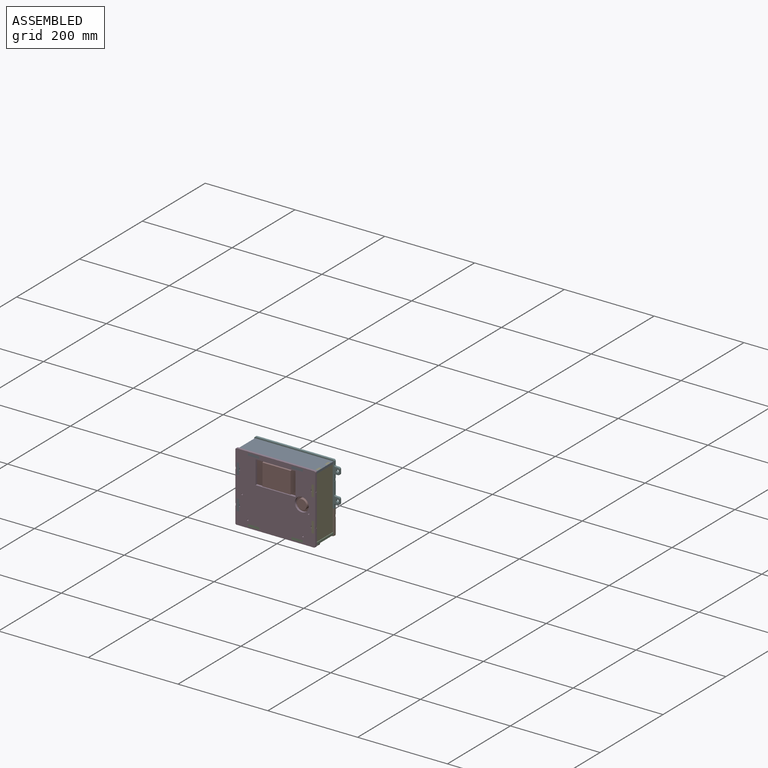
[diagram: assembled view]
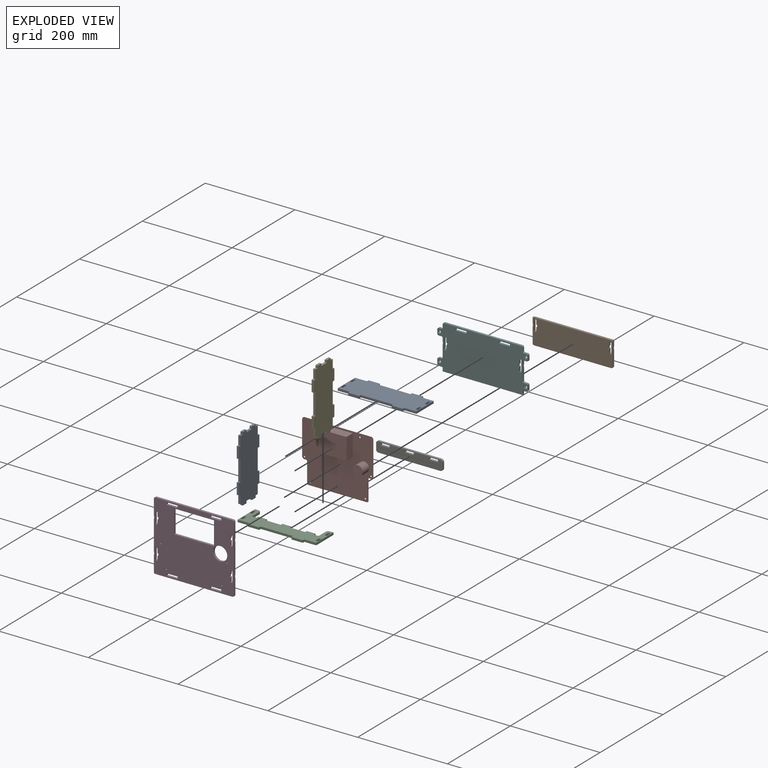
[diagram: exploded view]
GUIDED TOUR — MATED ASSEMBLY (Onshape document 0e16f6dee027c3512d9010fd, AutoMate assembly 0e16f6dee027c3512d9010fd_3248bda8da38cb0067d4859e_489a7c340848d6dffe4b2f9a_default)

This assembly has 9 components, labeled P0..P8 below (a component is one placed occurrence of a part; the same part can appear more than once), held together by 8 mates. A mate is a constraint between two components; its type names the relative motion it leaves free:
  FASTENED — locks the two components together rigidly (no relative motion).
Axis/direction vectors are unit vectors and 'through' points are millimeter coordinates, both in the assembly's world frame.

MATES
  1. FASTENED "Fastened 7": P0 <-> P1, direction (0.000, 1.000, 0.000) through (-81.00, 60.00, -43.50) mm
  2. FASTENED "Fastened 6": P8 <-> P5, direction (0.000, 1.000, 0.000) through (-61.00, 60.00, 54.50) mm
  3. FASTENED "Fastened 2": P3 <-> P8, direction (0.000, -1.000, 0.000) through (61.00, -5.00, 49.50) mm
  4. FASTENED "Fastened 5": P0 <-> P3, direction (0.000, -1.000, 0.000) through (-81.00, -5.00, -68.50) mm
  5. FASTENED "Fastened 4": P4 <-> P3, direction (0.000, -1.000, 0.000) through (81.00, -5.00, 29.50) mm
  6. FASTENED "Fastened 8": P2 <-> P6, direction (0.000, 1.000, 0.000) through (64.00, 32.00, -93.50) mm
  7. FASTENED "Fastened 1": P7 <-> P3, direction (0.000, -1.000, 0.000) through (58.90, -5.00, -17.10) mm
  8. FASTENED "Fastened 3": P2 <-> P3, direction (0.000, -1.000, 0.000) through (-36.00, -5.00, -93.50) mm

ASSEMBLY ORDER
  1. P2 — the base component [order verified]
  2. P7 [order verified]
  3. P4 [order verified]
  4. P8 [order verified]
  5. P0 [order verified]
  6. P6 [order verified]
  7. P3 [order verified]
  8. P5 [order verified]
  9. P1 [order verified]
(P3, P6 verified with a relaxed clearance tolerance: the source model stores slight part interference there.)
Order-tag legend:
  [order verified] — this step's position reverses a verified removal order: the component was checked to insert without passing through the ones already placed.

Of the 9 components, 1 carries the full construction recipe — the FeatureScript program that regenerates the part's solid from scratch; the rest are supplied as boundary geometry only.
Each toured component is shown spotlighted twice — in the assembled view, then in the exploded view, where a leader line traces a displaced component back to its assembled socket (saturated green if recipe-attached, orange if geometry-only; every other component desaturated gray) — followed by its recipe or geometry summary and the mates that hold it.
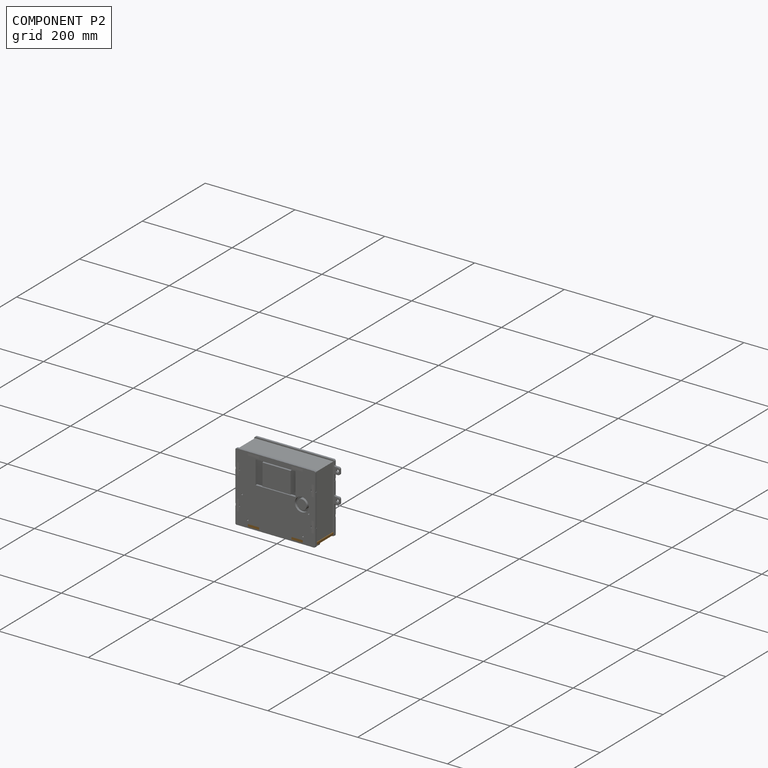
[diagram: component P2 — assembled]
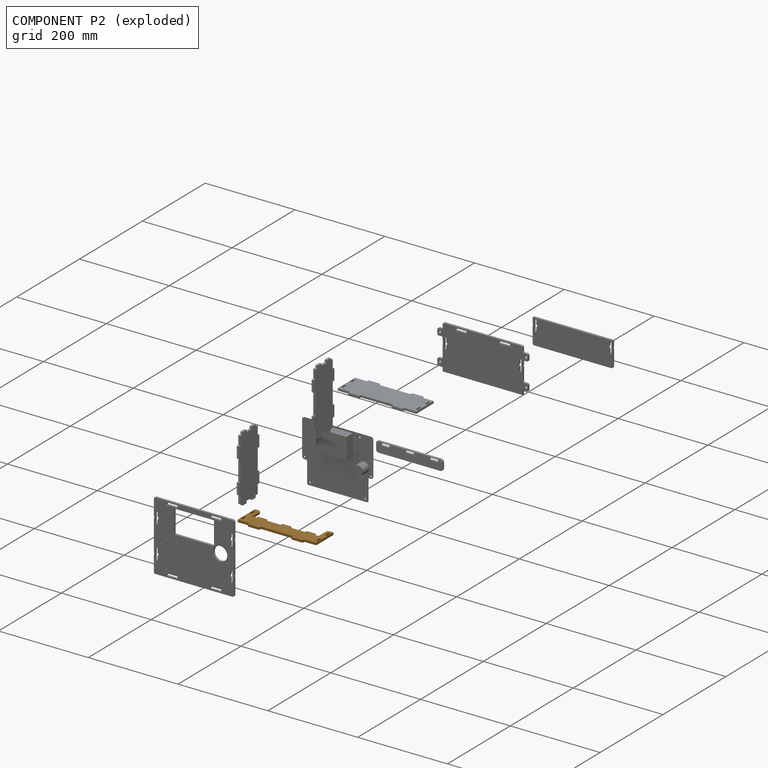
[diagram: component P2 — exploded]
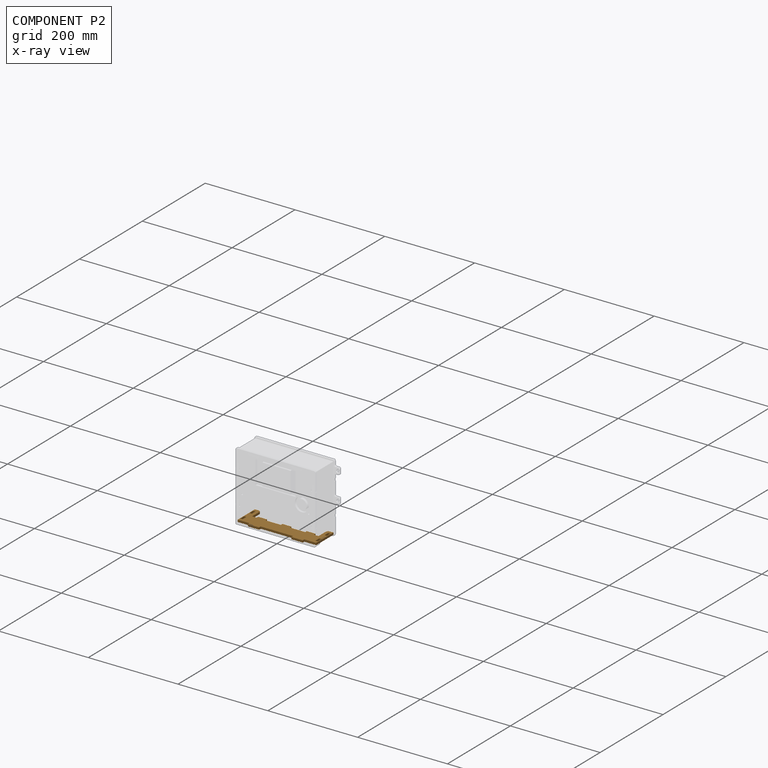
[diagram: component P2 — x-ray view]
COMPONENT P2 — geometry summary (no construction recipe available for this part):
  bounding box: 175.0 x 60.0 x 5.0 mm
  B-rep topology: 1 solid, 48 faces, 276 edges
  volume: 28901 mm^3 (55% of its bounding box)
  symmetry: 2-fold rotationally symmetric about the y axis; mirror-symmetric across its x mid-plane, z mid-plane
Held by: FASTENED mate "Fastened 8" to P6; FASTENED mate "Fastened 3" to P3.
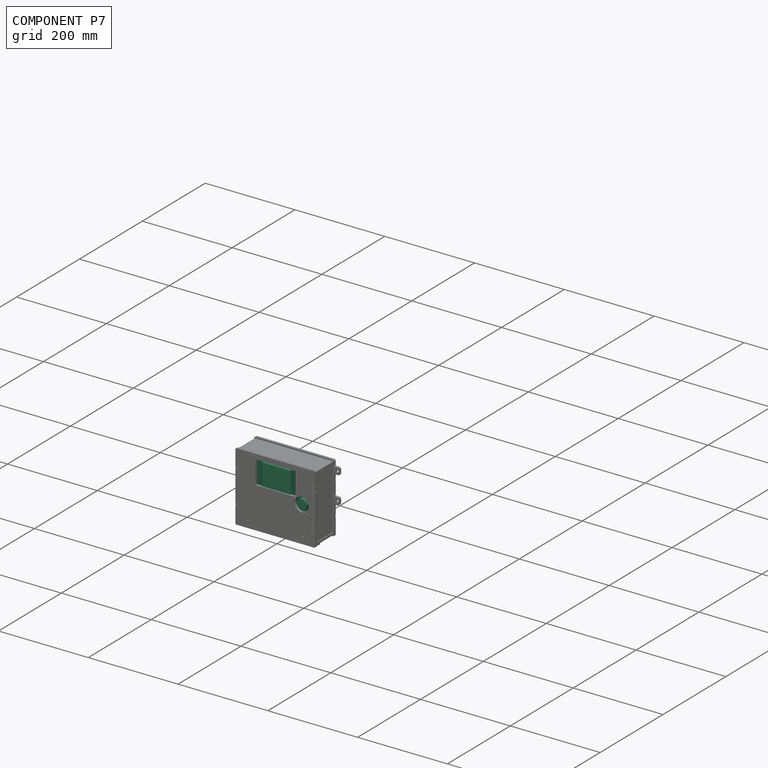
[diagram: component P7 — assembled]
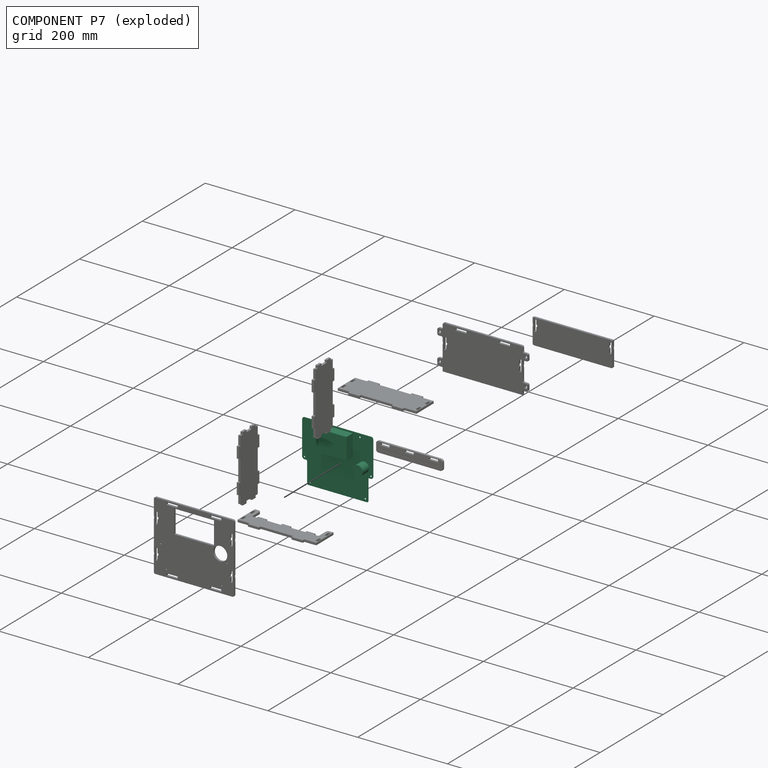
[diagram: component P7 — exploded]
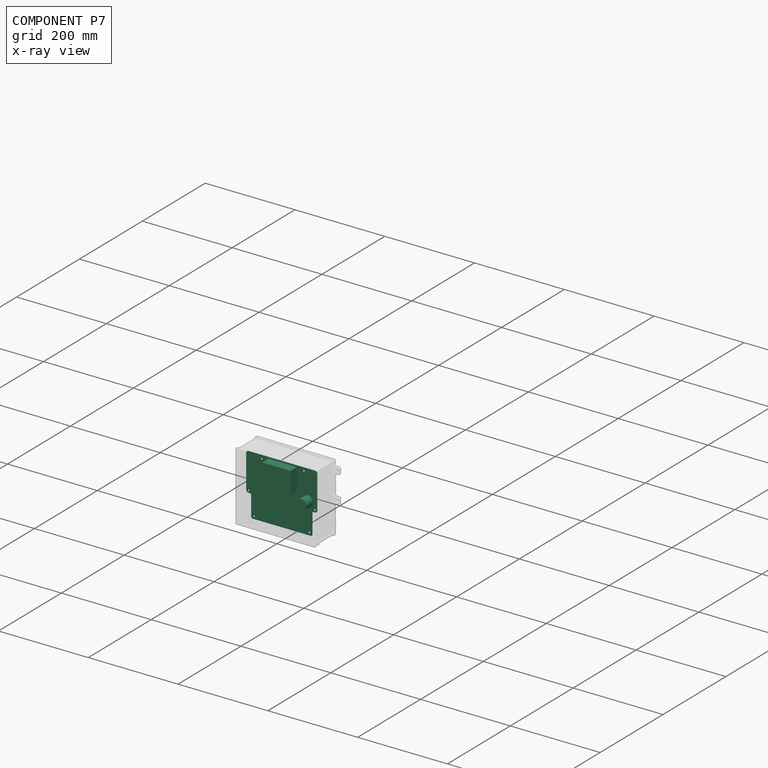
[diagram: component P7 — x-ray view]
COMPONENT P7 — recipe-attached (CADFS 00442533, mesh-verified: the recipe's output STEP matches this component's geometry to below the mesh-comparison resolution (tessellation chordal tolerance ~0.312 mm)).
Held by: FASTENED mate "Fastened 1" to P3.
Construction recipe (FeatureScript — the CAD program that rebuilds this solid; sketch coordinates are in the units given by the * unit suffixes, e.g. mm):

FeatureScript 1511;
import(path : "onshape/std/geometry.fs", version : "1511.0");
import(path : "onshape/std/common.fs", version : "1511.0");
const mm = millimeter;
const VERTEX = EntityType.VERTEX;
const EDGE = EntityType.EDGE;
const FACE = EntityType.FACE;
const BODY = EntityType.BODY;
function v(x, y){return vector(x, y);}
function OD(order){return orderDisambiguation(order);}
function OSD(set){return originalSetDisambiguation(set);}
function TD(topology){return topologyDisambiguation(topology);}
function TDD(query){return trueDependencyDisambiguation(query);}
function sQuery(a, b, c) {return sketchEntityQuery(a, b, c);}

annotation { "Feature Type Name" : "Feature", "Feature Type Description" : "" }
export const myFeature = defineFeature(function(context is Context, id is Id, definition is map)
    precondition{}
    {
        {
            var Q0;
            Q0=qCreatedBy(makeId("Front.planeOp"),FACE);
            var sketch = newSketch(context, id + "F0", { "sketchPlane" : qUnion([Q0])});
            skLineSegment(sketch, "E0", {"start": v(-79, -32) * mm, "end": v(-79, 42.5) * mm});
            skLineSegment(sketch, "E1", {"start": v(-74, 47.5) * mm, "end": v(74, 47.5) * mm});
            skLineSegment(sketch, "E2", {"start": v(79, 42.5) * mm, "end": v(79, -32) * mm});
            skLineSegment(sketch, "E3", {"start": v(74, -37) * mm, "end": v(70, -37) * mm});
            skLineSegment(sketch, "E4", {"start": v(68, -39) * mm, "end": v(68, -83.5) * mm});
            skLineSegment(sketch, "E5", {"start": v(65, -86.5) * mm, "end": v(-65, -86.5) * mm});
            skLineSegment(sketch, "E6", {"start": v(-68, -83.5) * mm, "end": v(-68, -39) * mm});
            skLineSegment(sketch, "E7", {"start": v(-70, -37) * mm, "end": v(-74, -37) * mm});
            skLineSegment(sketch, "E8", {"start": v(0, -86.5) * mm, "end": v(0, 47.5) * mm, "construction": true});
            skPoint(sketch, "E9.visualSharp", {"position": v(-79, 47.5) * mm});
            skArc(sketch, "E9.filletArc", {"start": v(-74, 47.5) * mm, "mid": v(-77.54, 46.04) * mm, "end": v(-79, 42.5) * mm});
            skPoint(sketch, "E10.visualSharp", {"position": v(79, 47.5) * mm});
            skArc(sketch, "E10.filletArc", {"start": v(79, 42.5) * mm, "mid": v(77.54, 46.04) * mm, "end": v(74, 47.5) * mm});
            skPoint(sketch, "E11.visualSharp", {"position": v(79, -37) * mm});
            skArc(sketch, "E11.filletArc", {"start": v(74, -37) * mm, "mid": v(77.54, -35.54) * mm, "end": v(79, -32) * mm});
            skPoint(sketch, "E12.visualSharp", {"position": v(-79, -37) * mm});
            skArc(sketch, "E12.filletArc", {"start": v(-79, -32) * mm, "mid": v(-77.54, -35.54) * mm, "end": v(-74, -37) * mm});
            skPoint(sketch, "E13.visualSharp", {"position": v(-68, -37) * mm});
            skArc(sketch, "E13.filletArc", {"start": v(-68, -39) * mm, "mid": v(-68.59, -37.59) * mm, "end": v(-70, -37) * mm});
            skPoint(sketch, "E14.visualSharp", {"position": v(68, -37) * mm});
            skArc(sketch, "E14.filletArc", {"start": v(70, -37) * mm, "mid": v(68.59, -37.59) * mm, "end": v(68, -39) * mm});
            skPoint(sketch, "E15.visualSharp", {"position": v(68, -86.5) * mm});
            skArc(sketch, "E15.filletArc", {"start": v(65, -86.5) * mm, "mid": v(67.12, -85.62) * mm, "end": v(68, -83.5) * mm});
            skPoint(sketch, "E16.visualSharp", {"position": v(-68, -86.5) * mm});
            skArc(sketch, "E16.filletArc", {"start": v(-68, -83.5) * mm, "mid": v(-67.12, -85.62) * mm, "end": v(-65, -86.5) * mm});
            skLineSegment(sketch, "E17.bottom", {"start": v(33.85, -3.9) * mm, "end": v(-29.15, -3.9) * mm});
            skLineSegment(sketch, "E17.top", {"start": v(33.85, 44.1) * mm, "end": v(-29.15, 44.1) * mm});
            skLineSegment(sketch, "E17.left", {"start": v(33.85, -3.9) * mm, "end": v(33.85, 44.1) * mm});
            skLineSegment(sketch, "E17.right", {"start": v(-29.15, -3.9) * mm, "end": v(-29.15, 44.1) * mm});
            skPoint(sketch, "E17.middle", {"position": v(2.35, 20.1) * mm});
            skCircle(sketch, "E18", {"center": v(58.9, -17.1) * mm, "radius": 11 * mm});
            skLineSegment(sketch, "E19", {"start": v(-68, -55) * mm, "end": v(68, -55) * mm, "construction": true});
            skLineSegment(sketch, "E20", {"start": v(68, -56) * mm, "end": v(-68, -56) * mm, "construction": true});
            skCircle(sketch, "E21", {"center": v(-74, -32) * mm, "radius": 1.6 * mm});
            skCircle(sketch, "E22", {"center": v(-61.5, -80.5) * mm, "radius": 1.6 * mm});
            skCircle(sketch, "E23", {"center": v(-44.45, 39.2) * mm, "radius": 1.6 * mm});
            skCircle(sketch, "E24", {"center": v(49.35, 40) * mm, "radius": 1.6 * mm});
            skLineSegment(sketch, "E25", {"start": v(-79, 0) * mm, "end": v(79, 0) * mm, "construction": true});
            skCircle(sketch, "E26.MirrorC", {"center": v(61.5, -80.5) * mm, "radius": 1.6 * mm});
            skCircle(sketch, "E27.MirrorC", {"center": v(74, -32) * mm, "radius": 1.6 * mm});
            skSolve(sketch);
        }
        {
            var Q0;
            Q0=makeQuery(id+"F0.imprint","IMPRINT",FACE,{"disambiguationData":[TD([[makeQuery(id+"F0.imprint","IMPRINT",EDGE,{"derivedFrom":sQuery(id+"F0.wireOp",EDGE,"E0")}),-1.0]])]});
            var Q1;
            Q1=makeQuery(id+"F0.imprint","IMPRINT",FACE,{"disambiguationData":[TD([[makeQuery(id+"F0.imprint","IMPRINT",EDGE,{"derivedFrom":sQuery(id+"F0.wireOp",EDGE,"E17.bottom")}),-1.0]])]});
            var Q2;
            Q2=makeQuery(id+"F0.imprint","IMPRINT",FACE,{"disambiguationData":[TD([[makeQuery(id+"F0.imprint","IMPRINT",EDGE,{"derivedFrom":sQuery(id+"F0.wireOp",EDGE,"E18")}),1.0]])]});
            extrude(context, id + "F1", {"entities" : qUnion([Q0, Q1, Q2]), "oppositeDirection" : true, "depth" : 1 * mm});
        }
        {
            var Q0;
            Q0=makeQuery(id+"F0.imprint","IMPRINT",FACE,{"disambiguationData":[TD([[makeQuery(id+"F0.imprint","IMPRINT",EDGE,{"derivedFrom":sQuery(id+"F0.wireOp",EDGE,"E17.bottom")}),-1.0]])]});
            var Q1;
            Q1=makeQuery(id+"F0.imprint","IMPRINT",FACE,{"disambiguationData":[TD([[makeQuery(id+"F0.imprint","IMPRINT",EDGE,{"derivedFrom":sQuery(id+"F0.wireOp",EDGE,"E18")}),1.0]])]});
            extrude(context, id + "F2", {"entities" : qUnion([Q0, Q1]), "operationType" : NewBodyOperationType.ADD, "depth" : 20 * mm});
        }
    });
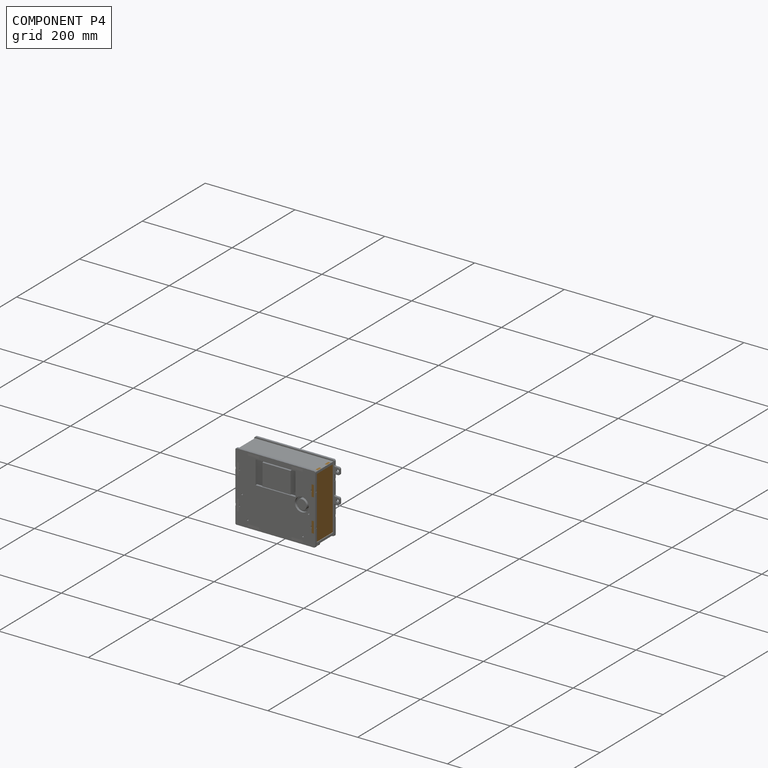
[diagram: component P4 — assembled]
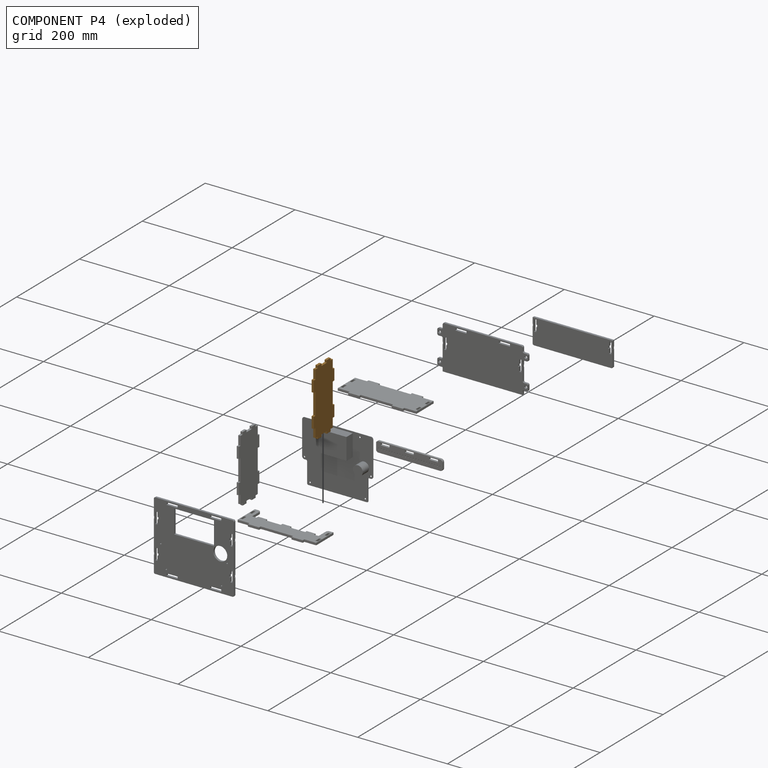
[diagram: component P4 — exploded]
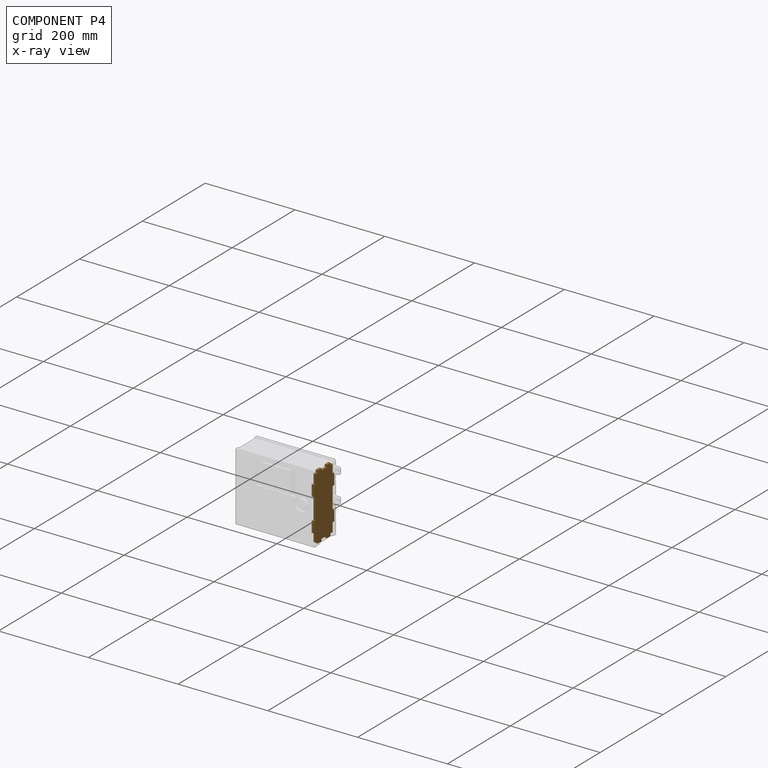
[diagram: component P4 — x-ray view]
COMPONENT P4 — geometry summary (no construction recipe available for this part):
  bounding box: 148.0 x 65.0 x 5.0 mm
  B-rep topology: 1 solid, 38 faces, 216 edges
  volume: 41650 mm^3 (87% of its bounding box)
  symmetry: 2-fold rotationally symmetric about the x axis; 2-fold rotationally symmetric about the y axis; 2-fold rotationally symmetric about the z axis; mirror-symmetric across its x mid-plane, y mid-plane, z mid-plane
Held by: FASTENED mate "Fastened 4" to P3.
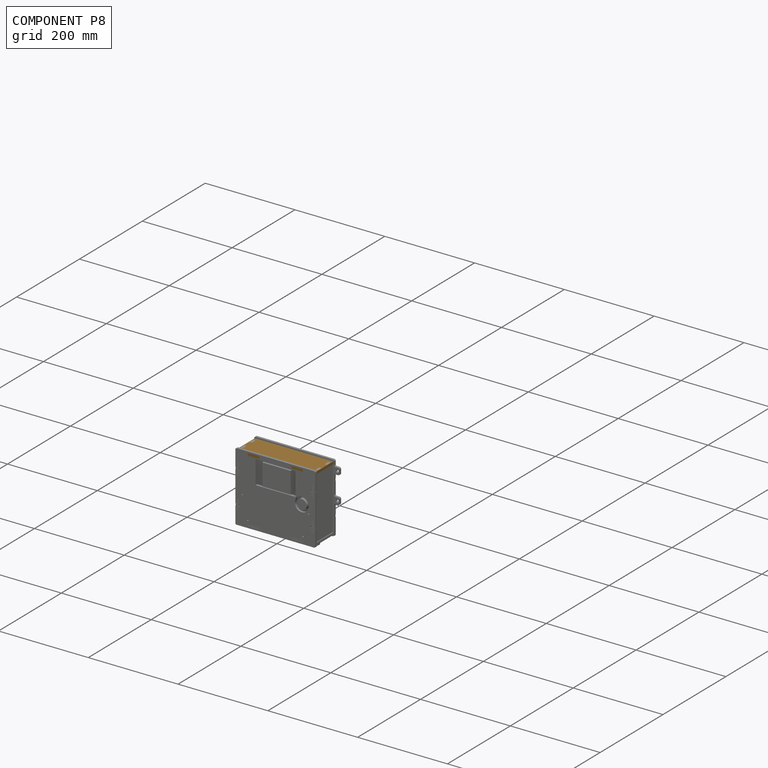
[diagram: component P8 — assembled]
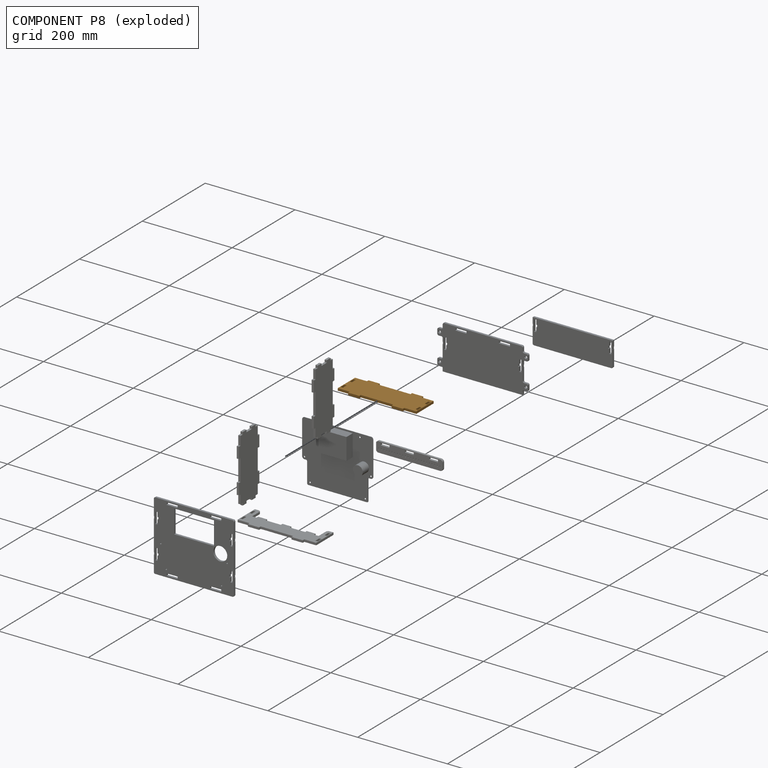
[diagram: component P8 — exploded]
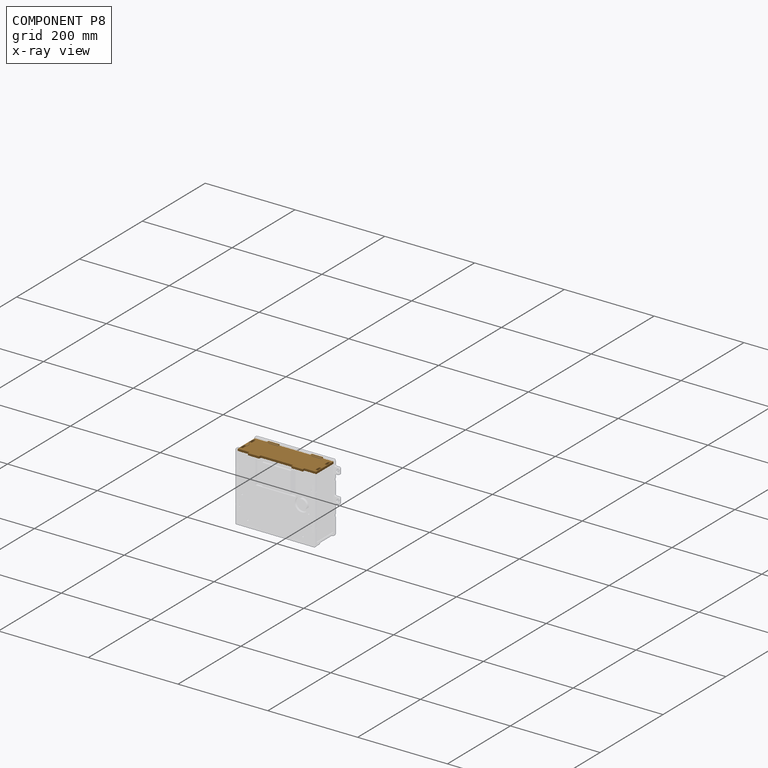
[diagram: component P8 — x-ray view]
COMPONENT P8 — geometry summary (no construction recipe available for this part):
  bounding box: 175.0 x 65.0 x 5.0 mm
  B-rep topology: 1 solid, 38 faces, 216 edges
  volume: 49425 mm^3 (87% of its bounding box)
  symmetry: 2-fold rotationally symmetric about the x axis; 2-fold rotationally symmetric about the y axis; 2-fold rotationally symmetric about the z axis; mirror-symmetric across its x mid-plane, y mid-plane, z mid-plane
Held by: FASTENED mate "Fastened 6" to P5; FASTENED mate "Fastened 2" to P3.
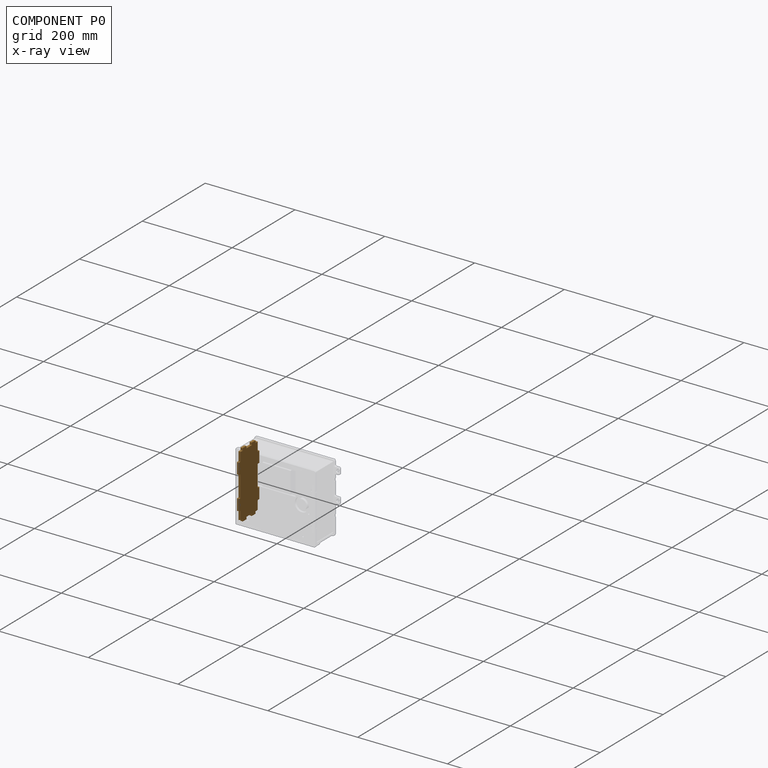
[diagram: component P0 — x-ray view]
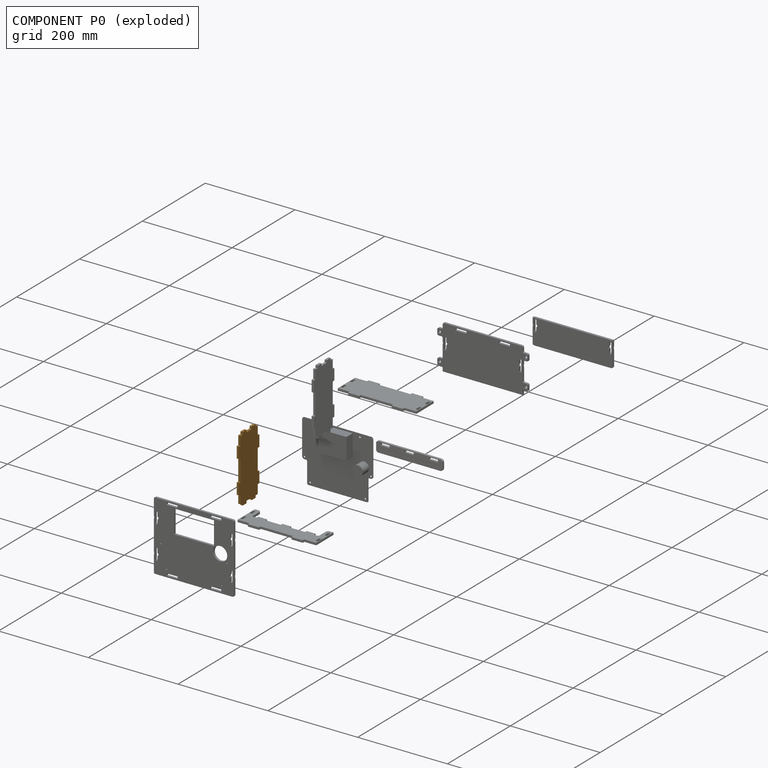
[diagram: component P0 — exploded]
COMPONENT P0 — geometry summary (no construction recipe available for this part):
  bounding box: 148.0 x 65.0 x 5.0 mm
  B-rep topology: 1 solid, 38 faces, 216 edges
  volume: 41650 mm^3 (87% of its bounding box)
  symmetry: 2-fold rotationally symmetric about the x axis; 2-fold rotationally symmetric about the y axis; 2-fold rotationally symmetric about the z axis; mirror-symmetric across its x mid-plane, y mid-plane, z mid-plane
Held by: FASTENED mate "Fastened 7" to P1; FASTENED mate "Fastened 5" to P3.
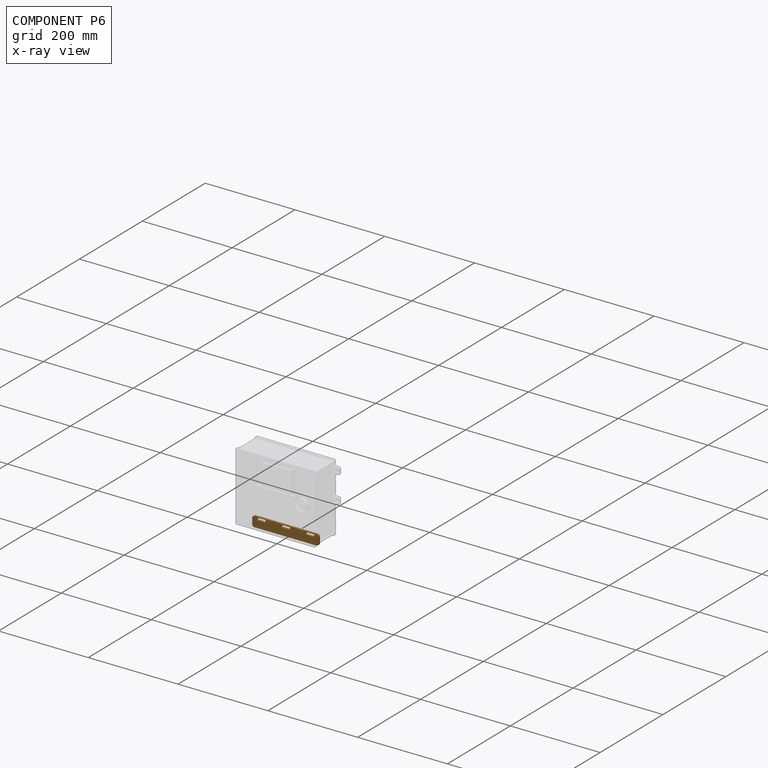
[diagram: component P6 — x-ray view]
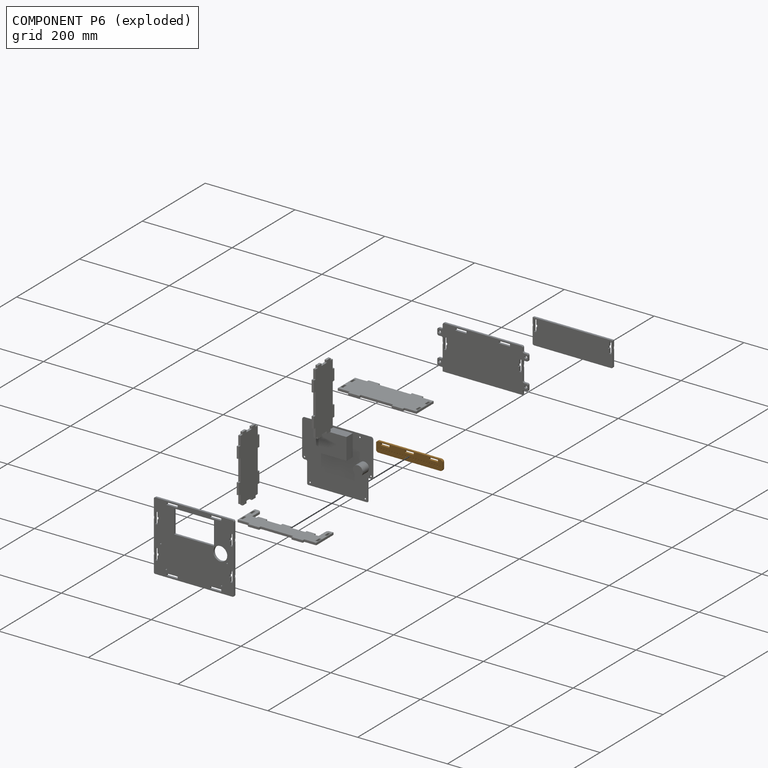
[diagram: component P6 — exploded]
COMPONENT P6 — geometry summary (no construction recipe available for this part):
  bounding box: 148.0 x 23.0 x 5.0 mm
  B-rep topology: 1 solid, 118 faces, 696 edges
  volume: 14789 mm^3 (87% of its bounding box)
  symmetry: 2-fold rotationally symmetric about the y axis; mirror-symmetric across its x mid-plane, z mid-plane
Held by: FASTENED mate "Fastened 8" to P2.
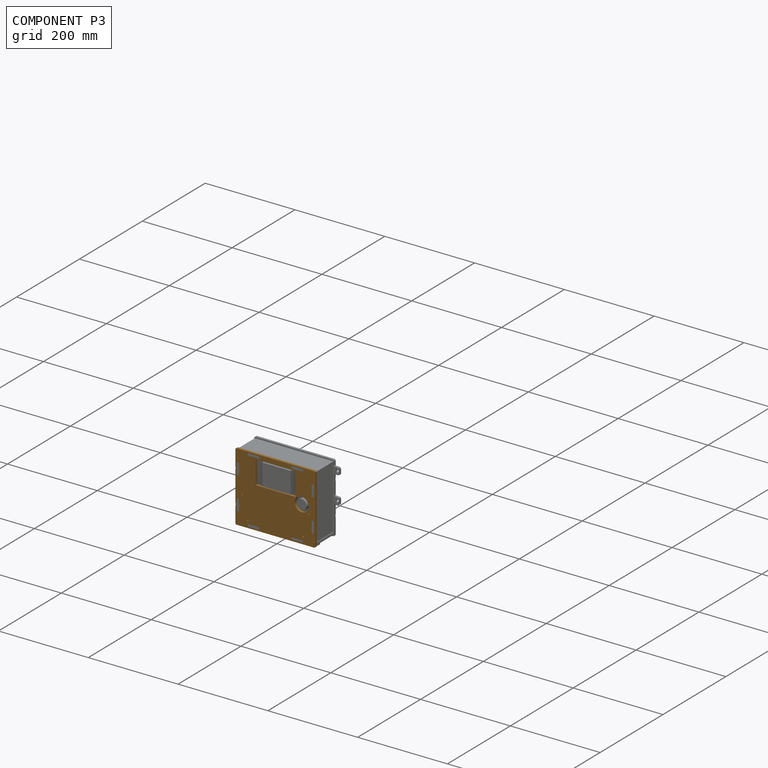
[diagram: component P3 — assembled]
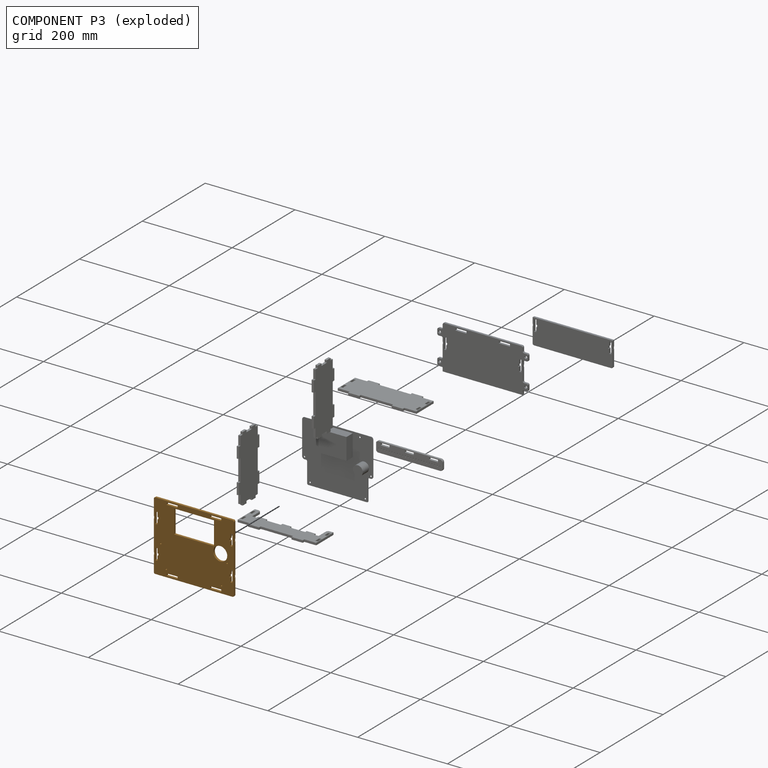
[diagram: component P3 — exploded]
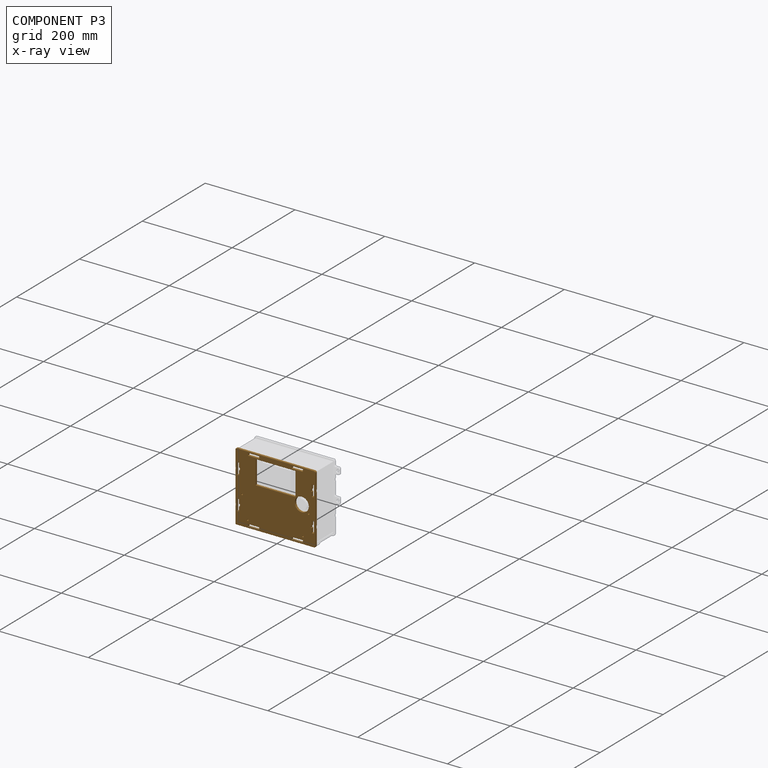
[diagram: component P3 — x-ray view]
COMPONENT P3 — geometry summary (no construction recipe available for this part):
  bounding box: 178.0 x 154.0 x 5.0 mm
  B-rep topology: 1 solid, 83 faces, 486 edges
  volume: 104697 mm^3 (76% of its bounding box)
  symmetry: mirror-symmetric across its y mid-plane
Held by: FASTENED mate "Fastened 2" to P8; FASTENED mate "Fastened 5" to P0; FASTENED mate "Fastened 4" to P4; FASTENED mate "Fastened 1" to P7; FASTENED mate "Fastened 3" to P2.
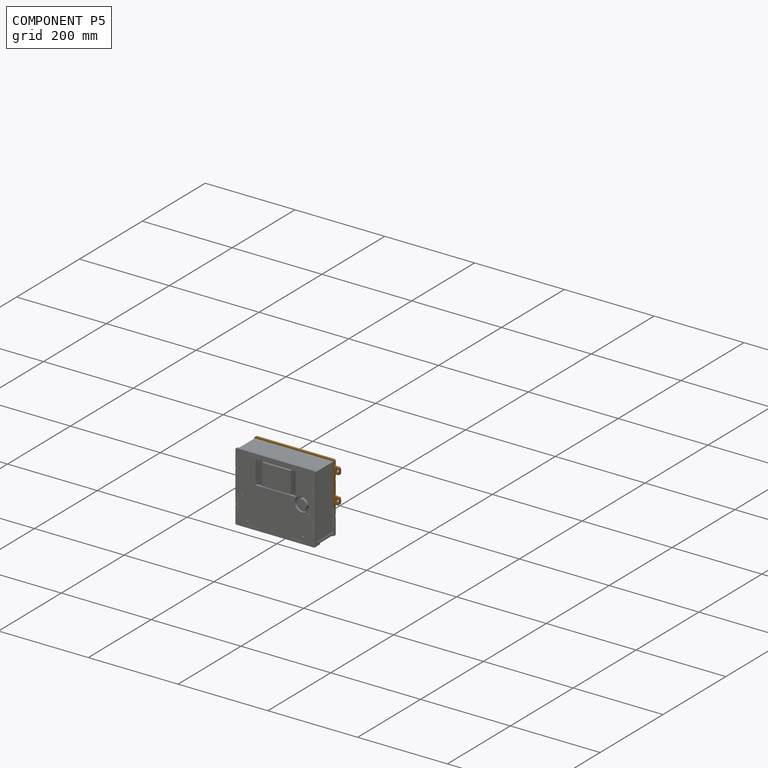
[diagram: component P5 — assembled]
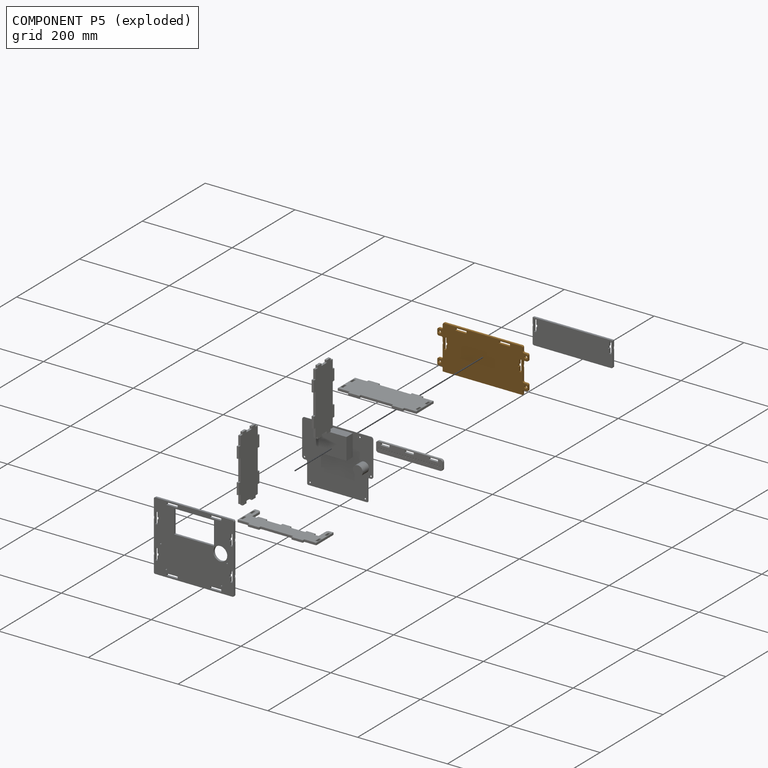
[diagram: component P5 — exploded]
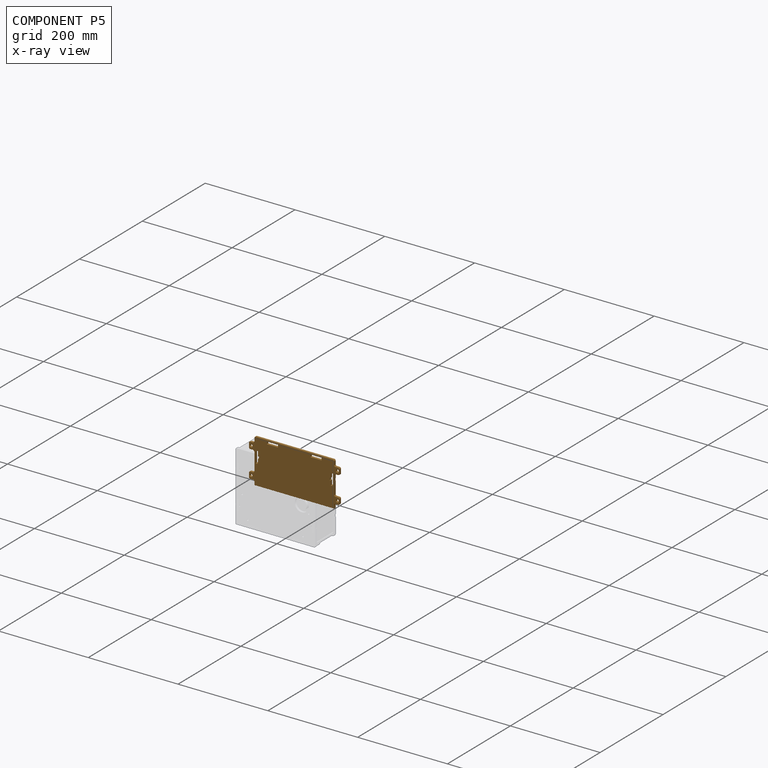
[diagram: component P5 — x-ray view]
COMPONENT P5 — geometry summary (no construction recipe available for this part):
  bounding box: 202.0 x 98.0 x 5.0 mm
  B-rep topology: 1 solid, 76 faces, 444 edges
  volume: 87572 mm^3 (88% of its bounding box)
  symmetry: 2-fold rotationally symmetric about the z axis; mirror-symmetric across its x mid-plane, y mid-plane
Held by: FASTENED mate "Fastened 6" to P8.
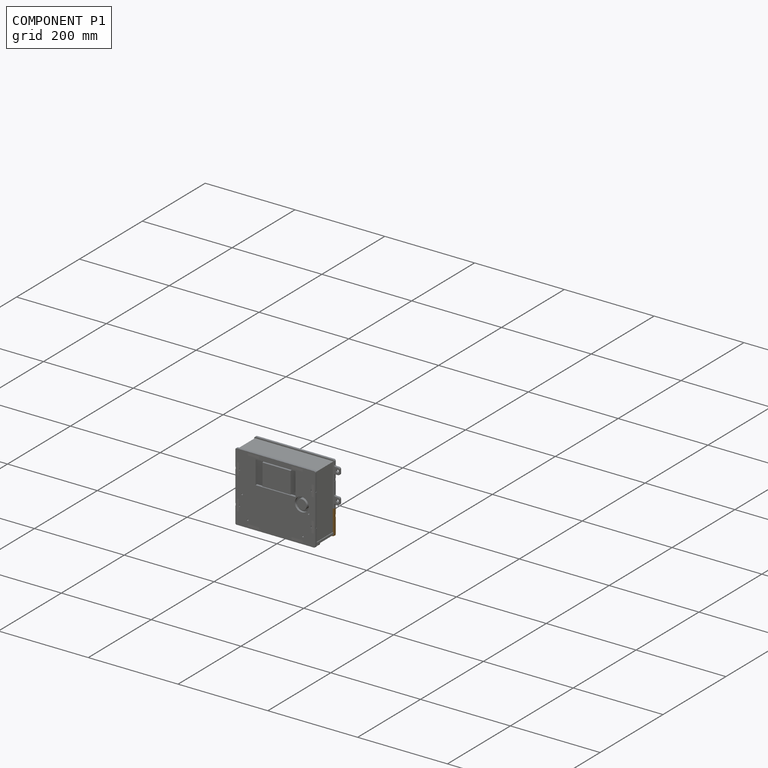
[diagram: component P1 — assembled]
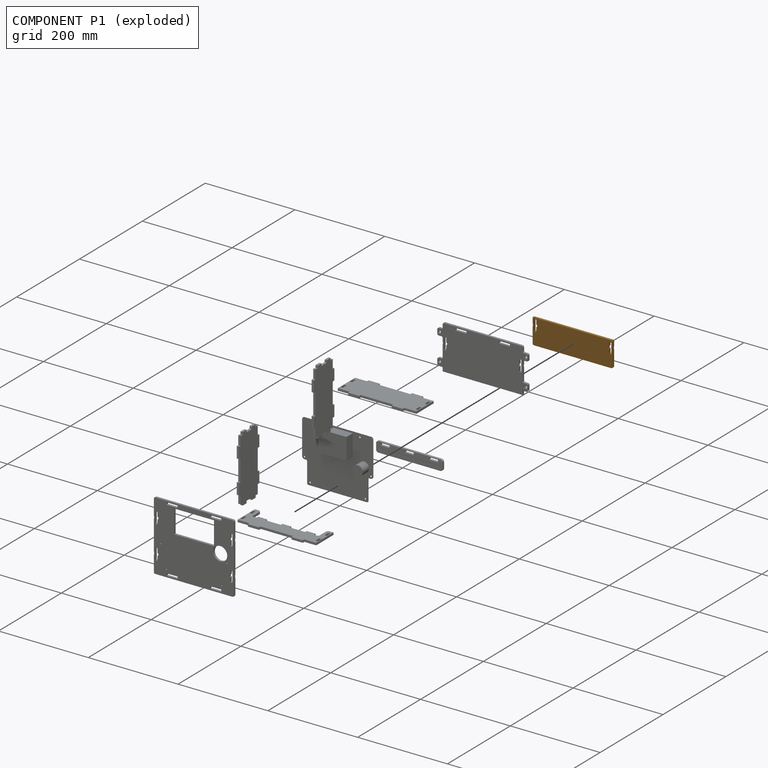
[diagram: component P1 — exploded]
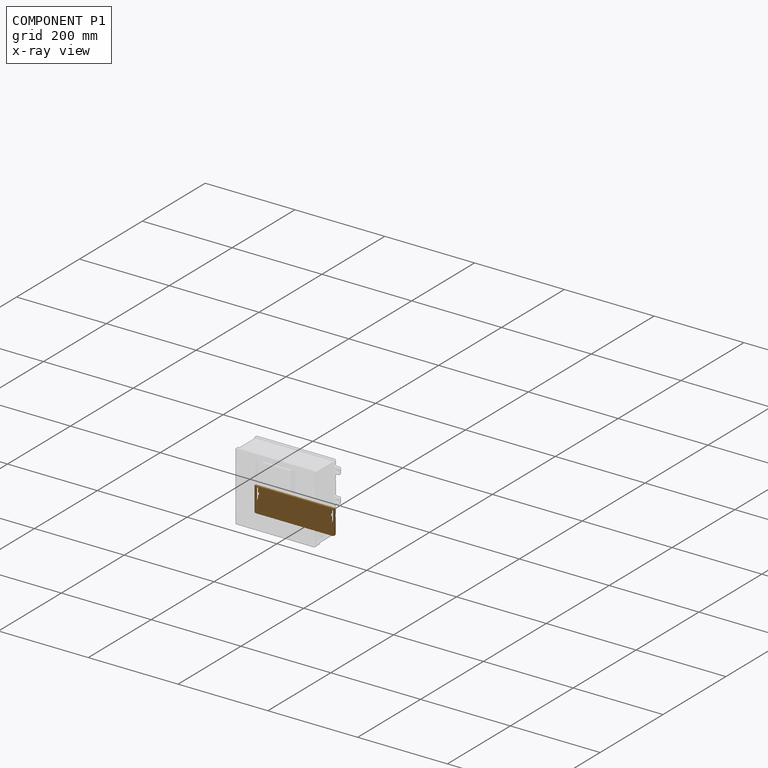
[diagram: component P1 — x-ray view]
COMPONENT P1 — geometry summary (no construction recipe available for this part):
  bounding box: 178.0 x 56.0 x 5.0 mm
  B-rep topology: 1 solid, 32 faces, 180 edges
  volume: 48446 mm^3 (97% of its bounding box)
  symmetry: 2-fold rotationally symmetric about the z axis; mirror-symmetric across its x mid-plane, y mid-plane
Held by: FASTENED mate "Fastened 7" to P0.
PROVENANCE & LICENSES
Assembly (occurrences, transforms, mates, per-part STEP geometry): AutoMate dataset, Zenodo record 7776208, CC0.
Construction recipes: CADFS (HuggingFace VladPyatov/CADFS, CC-BY-4.0, layered over the ABC dataset), FeatureScript reconstruction programs keyed by ABC model id.
Join: ABC meta listings map ABC model id -> Onshape documentId; within a shared document, parts are matched by geometric signature (bounding-box dims + volume at 0.1% relative tolerance, exact B-rep face/solid counts).
Verification: 1 of this assembly's 9 components carries a recipe attachment, and every attachment is mesh-verified: the CADFS STEP and the AutoMate member STEP were compared as meshes in their shared local frame (symmetric sampled-point-to-mesh distance); worst across the 1 attachment: below the mesh-comparison resolution (tessellation chordal tolerance ~0.312 mm) on a 208 mm part.
Renders: orthographic iso camera (az 35 / el 25); the floor grid conveys scale (grid pitch printed in each image; no ruler). In the exploded view each component is displaced by its stored offset vector: the offsets alone carry the explosion direction (mate normal/axis signs are not orientation cues and do not encode it), and separation distances are assigned per mate-chain, not proportionally to assembly-order depth.
